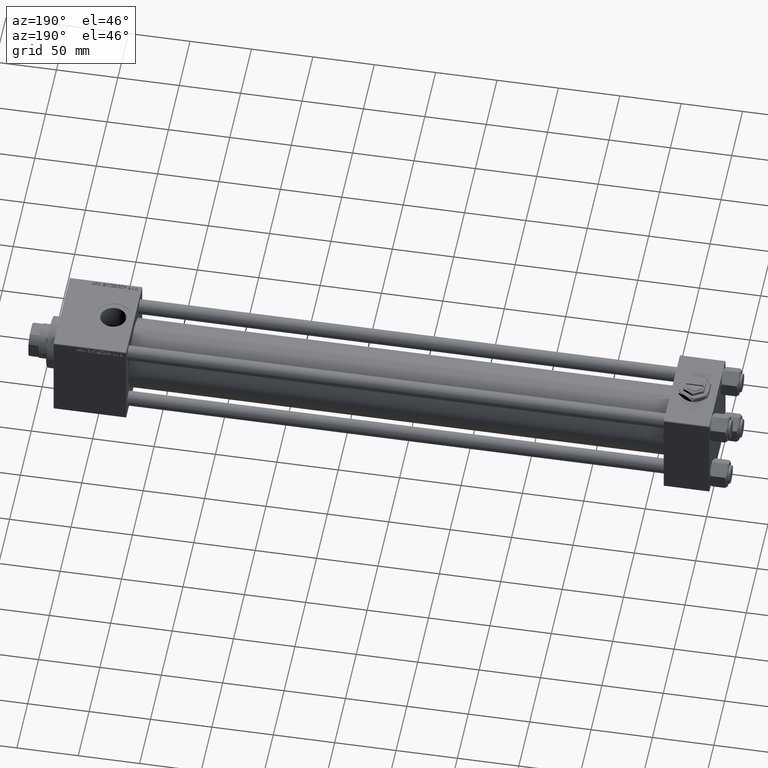
[diagram: clean part render]
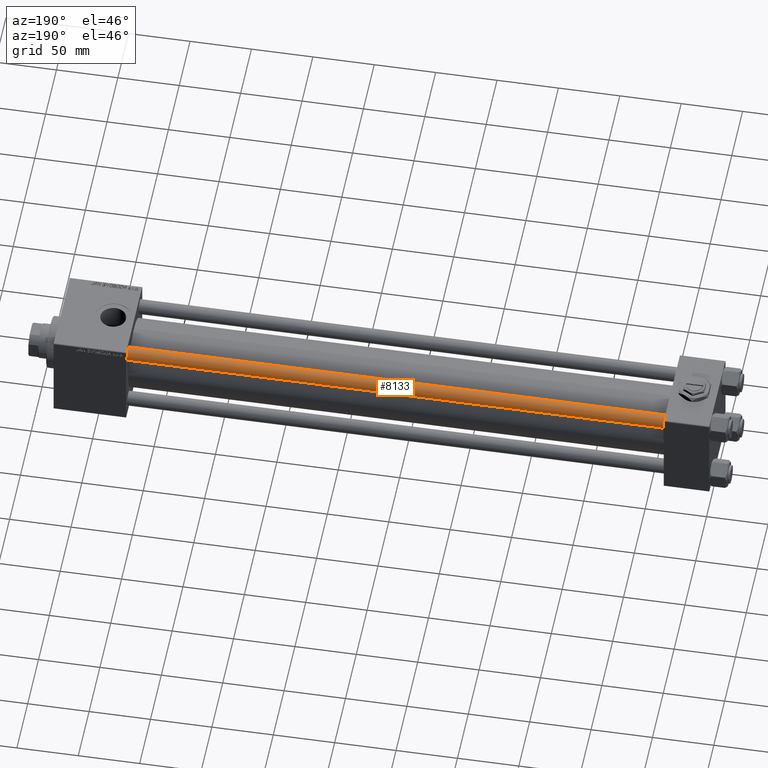
[diagram: same view with one face highlighted and labeled with its STEP entity id]
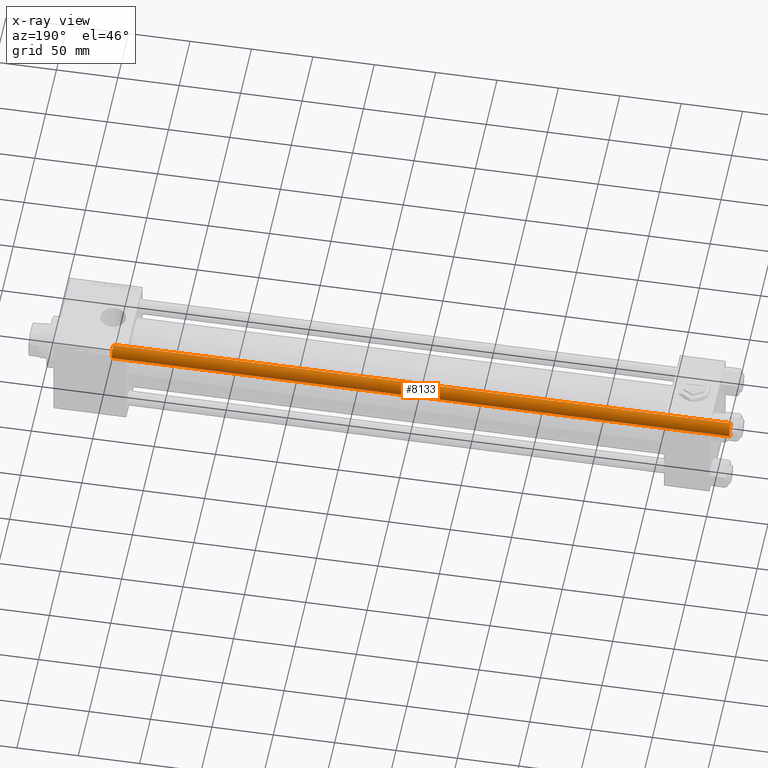
[diagram: x-ray of the same camera — body ghosted, the highlighted face saturated]
A machine part, auxiliary view. The second image highlights one B-rep face of the part: STEP entity #8133.
The next image is the same camera in x-ray: the body ghosted, the highlighted face saturated — about 0% of this face is hidden behind the body in this view.
In plain terms, the highlighted cylindrical surface (edge-blend (fillet) strip) has radius 6 mm, axis along (-1, 0, 0).
Its self-contained STEP definition (entity closure, byte-faithful):
#987 = CARTESIAN_POINT ( 'NONE',  ( -6.000000000000000888, 0.000000000000000000, 0.5000000000001669775 ) ) ;
#2576 = EDGE_CURVE ( 'NONE', #37196, #6054, #16590, .T. ) ;
#3486 = EDGE_CURVE ( 'NONE', #37196, #15474, #27277, .T. ) ;
#4049 = CYLINDRICAL_SURFACE ( 'NONE', #10603, 6.000000000000000888 ) ;
#6054 = VERTEX_POINT ( 'NONE', #987 ) ;
#8133 = ADVANCED_FACE ( 'NONE', ( #51360 ), #4049, .T. ) ;
#9814 = DIRECTION ( 'NONE',  ( 1.000000000000000000, 0.000000000000000000, 0.000000000000000000 ) ) ;
#10265 = ORIENTED_EDGE ( 'NONE', *, *, #3486, .T. ) ;
#10603 = AXIS2_PLACEMENT_3D ( 'NONE', #27269, #23055, #47383 ) ;
#11040 = DIRECTION ( 'NONE',  ( 0.000000000000000000, 0.000000000000000000, -1.000000000000000000 ) ) ;
#11202 = ORIENTED_EDGE ( 'NONE', *, *, #17412, .T. ) ;
#11292 = AXIS2_PLACEMENT_3D ( 'NONE', #51198, #11040, #26354 ) ;
#11657 = AXIS2_PLACEMENT_3D ( 'NONE', #12972, #30120, #9814 ) ;
#12769 = LINE ( 'NONE', #32048, #26059 ) ;
#12972 = CARTESIAN_POINT ( 'NONE',  ( 0.000000000000000000, 0.000000000000000000, 0.5000000000001669775 ) ) ;
#14410 = ORIENTED_EDGE ( 'NONE', *, *, #16162, .T. ) ;
#15474 = VERTEX_POINT ( 'NONE', #27678 ) ;
#16162 = EDGE_CURVE ( 'NONE', #15474, #51868, #12769, .T. ) ;
#16590 = LINE ( 'NONE', #31934, #31640 ) ;
#17412 = EDGE_CURVE ( 'NONE', #51868, #6054, #25976, .T. ) ;
#19983 = CARTESIAN_POINT ( 'NONE',  ( -6.000000000000000888, 0.000000000000000000, 503.5000000000000568 ) ) ;
#23055 = DIRECTION ( 'NONE',  ( -0.000000000000000000, -0.000000000000000000, -1.000000000000000000 ) ) ;
#25483 = ORIENTED_EDGE ( 'NONE', *, *, #2576, .F. ) ;
#25976 = CIRCLE ( 'NONE', #11657, 6.000000000000000888 ) ;
#26059 = VECTOR ( 'NONE', #40509, 1000.000000000000000 ) ;
#26332 = CARTESIAN_POINT ( 'NONE',  ( 6.000000000000000888, 7.347880794884120722E-16, 0.5000000000001669775 ) ) ;
#26354 = DIRECTION ( 'NONE',  ( 1.000000000000000000, 0.000000000000000000, 0.000000000000000000 ) ) ;
#27269 = CARTESIAN_POINT ( 'NONE',  ( 0.000000000000000000, 0.000000000000000000, 504.0000000000000000 ) ) ;
#27277 = CIRCLE ( 'NONE', #11292, 6.000000000000000888 ) ;
#27678 = CARTESIAN_POINT ( 'NONE',  ( 6.000000000000000888, 7.347880794884120722E-16, 503.5000000000000568 ) ) ;
#30120 = DIRECTION ( 'NONE',  ( -0.000000000000000000, -0.000000000000000000, 1.000000000000000000 ) ) ;
#31640 = VECTOR ( 'NONE', #48072, 1000.000000000000000 ) ;
#31934 = CARTESIAN_POINT ( 'NONE',  ( -6.000000000000000888, 0.000000000000000000, 504.0000000000000000 ) ) ;
#32048 = CARTESIAN_POINT ( 'NONE',  ( 6.000000000000000888, 7.347880794884120722E-16, 504.0000000000000000 ) ) ;
#37196 = VERTEX_POINT ( 'NONE', #19983 ) ;
#40509 = DIRECTION ( 'NONE',  ( -0.000000000000000000, -0.000000000000000000, -1.000000000000000000 ) ) ;
#44727 = EDGE_LOOP ( 'NONE', ( #10265, #14410, #11202, #25483 ) ) ;
#47383 = DIRECTION ( 'NONE',  ( -1.000000000000000000, 0.000000000000000000, 0.000000000000000000 ) ) ;
#48072 = DIRECTION ( 'NONE',  ( -0.000000000000000000, -0.000000000000000000, -1.000000000000000000 ) ) ;
#51198 = CARTESIAN_POINT ( 'NONE',  ( 0.000000000000000000, 0.000000000000000000, 503.5000000000000568 ) ) ;
#51360 = FACE_OUTER_BOUND ( 'NONE', #44727, .T. ) ;
#51868 = VERTEX_POINT ( 'NONE', #26332 ) ;